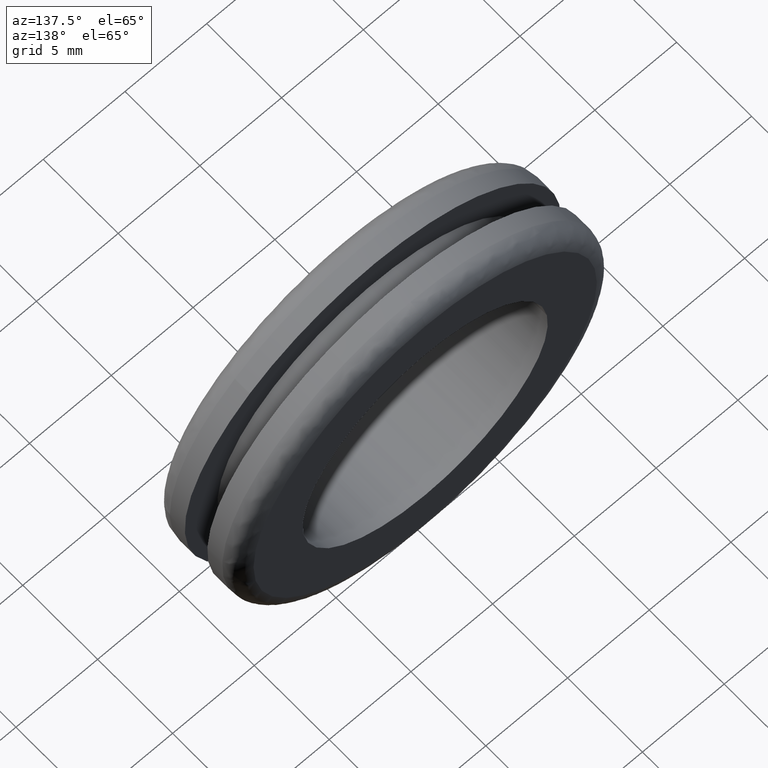
[diagram: clean part render]
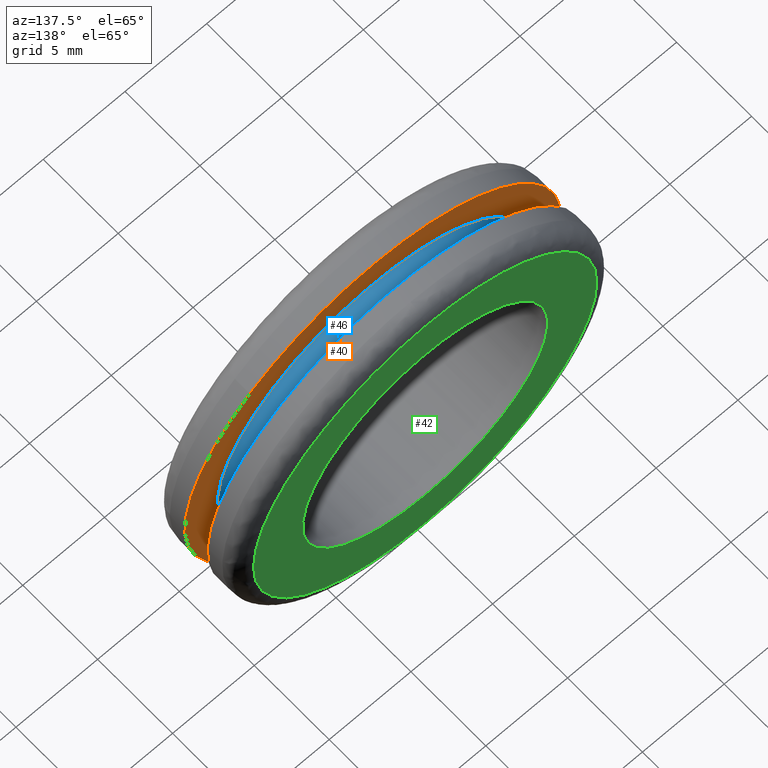
[diagram: same view with three faces highlighted in distinct colors, each labeled with its STEP entity id]
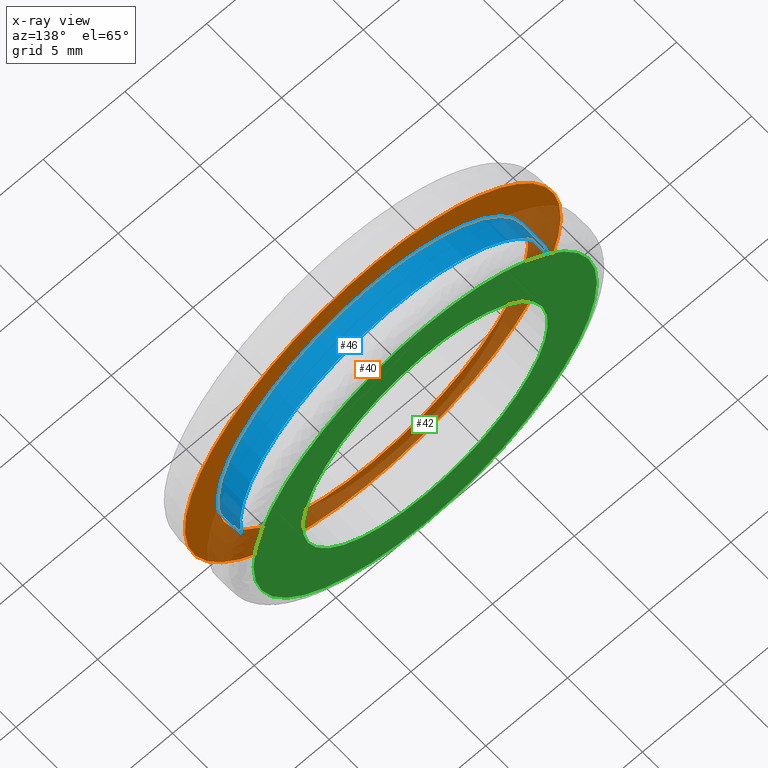
[diagram: x-ray of the same camera — body ghosted, the three highlighted faces saturated]
A machine part, auxiliary view with three faces highlighted in distinct colors.
The next image is the same camera in x-ray (body ghosted, the three faces saturated) — at least one of them is partly hidden behind the body in this view.
Their STEP definitions:

[orange] entity #40 — the highlighted planar face has unit normal (0, -1, 0).
#40=ADVANCED_FACE('',(#57,#58),#56,.F.);
#56=PLANE('',#223);
#57=FACE_OUTER_BOUND('',#224,.T.);
#58=FACE_BOUND('',#225,.T.);
#220=CARTESIAN_POINT('',(-2.62541476943E+001,2.00000000000E+000,2.58247788262E+001));
#221=DIRECTION('',(0.00000000000E+000,-1.00000000000E+000,0.00000000000E+000));
#222=DIRECTION('',(0.00000000000E+000,0.00000000000E+000,-1.00000000000E+000));
#223=AXIS2_PLACEMENT_3D('',#220,#221,#222);
#224=EDGE_LOOP('',(#388,#389,#390));
#225=EDGE_LOOP('',(#391,#392,#393));
#388=ORIENTED_EDGE('',*,*,#486,.F.);
#389=ORIENTED_EDGE('',*,*,#487,.F.);
#390=ORIENTED_EDGE('',*,*,#488,.F.);
#391=ORIENTED_EDGE('',*,*,#489,.T.);
#392=ORIENTED_EDGE('',*,*,#490,.T.);
#393=ORIENTED_EDGE('',*,*,#491,.T.);
#486=EDGE_CURVE('',#535,#536,#537,.T.);
#487=EDGE_CURVE('',#543,#535,#544,.T.);
#488=EDGE_CURVE('',#536,#543,#550,.T.);
#489=EDGE_CURVE('',#556,#557,#558,.T.);
#490=EDGE_CURVE('',#557,#564,#565,.T.);
#491=EDGE_CURVE('',#564,#556,#571,.T.);
#535=VERTEX_POINT('',#866);
#536=VERTEX_POINT('',#867);
#537=CIRCLE('',#871,1.15000006468E+001);
#543=VERTEX_POINT('',#872);
#544=CIRCLE('',#876,1.15000006468E+001);
#550=CIRCLE('',#880,1.15000006468E+001);
#556=VERTEX_POINT('',#881);
#557=VERTEX_POINT('',#882);
#558=CIRCLE('',#886,9.50000000000E+000);
#564=VERTEX_POINT('',#887);
#565=CIRCLE('',#891,9.50000000000E+000);
#571=CIRCLE('',#895,9.50000000000E+000);
#866=CARTESIAN_POINT('',(7.52490690199E+000,2.00000000000E+000,8.69630989958E+000));
#867=CARTESIAN_POINT('',(-7.76928758124E+000,2.00000000000E+000,8.47869049913E+000));
#868=CARTESIAN_POINT('',(2.40992899858E-007,2.00000000000E+000,6.46807672311E-007));
#869=DIRECTION('',(-1.02243053205E-016,-1.00000000000E+000,6.36963756175E-015));
#870=DIRECTION('',(-6.75590207414E-001,4.76526382467E-015,7.37277336995E-001));
#871=AXIS2_PLACEMENT_3D('',#868,#869,#870);
#872=CARTESIAN_POINT('',(-7.52464777687E+000,2.00000000000E+000,-8.69653240285E+000));
#873=CARTESIAN_POINT('',(2.40992899858E-007,2.00000000000E+000,6.46807672311E-007));
#874=DIRECTION('',(-1.02243053205E-016,-1.00000000000E+000,6.36963756175E-015));
#875=DIRECTION('',(-6.75590207414E-001,4.76526382467E-015,7.37277336995E-001));
#876=AXIS2_PLACEMENT_3D('',#873,#874,#875);
#877=CARTESIAN_POINT('',(2.40992899858E-007,2.00000000000E+000,6.46807672311E-007));
#878=DIRECTION('',(-1.02243053205E-016,-1.00000000000E+000,6.36963756175E-015));
#879=DIRECTION('',(-6.75590207414E-001,4.76526382467E-015,7.37277336995E-001));
#880=AXIS2_PLACEMENT_3D('',#877,#878,#879);
#881=CARTESIAN_POINT('',(-1.77635683940E-015,2.00000000000E+000,-9.50000000000E+000));
#882=CARTESIAN_POINT('',(9.43339655492E+000,2.00000000000E+000,-1.12295567035E+000));
#883=CARTESIAN_POINT('',(6.92779167366E-014,2.00000000000E+000,1.51878509769E-013));
#884=DIRECTION('',(2.91923264316E-015,-1.00000000000E+000,1.96087245233E-014));
#885=DIRECTION('',(-7.11930514541E-015,-1.96087245233E-014,-1.00000000000E+000));
#886=AXIS2_PLACEMENT_3D('',#883,#884,#885);
#887=CARTESIAN_POINT('',(-9.43359050867E+000,2.00000000000E+000,1.12132516010E+000));
#888=CARTESIAN_POINT('',(6.92779167366E-014,2.00000000000E+000,1.51878509769E-013));
#889=DIRECTION('',(2.91923264316E-015,-1.00000000000E+000,1.96087245233E-014));
#890=DIRECTION('',(-7.11930514541E-015,-1.96087245233E-014,-1.00000000000E+000));
#891=AXIS2_PLACEMENT_3D('',#888,#889,#890);
#892=CARTESIAN_POINT('',(6.92779167366E-014,2.00000000000E+000,1.51878509769E-013));
#893=DIRECTION('',(2.91923264316E-015,-1.00000000000E+000,1.96087245233E-014));
#894=DIRECTION('',(-7.11930514541E-015,-1.96087245233E-014,-1.00000000000E+000));
#895=AXIS2_PLACEMENT_3D('',#892,#893,#894);

[blue] entity #46 — the highlighted cylindrical surface (partial cylindrical patch) has radius 9.5 mm, axis along (-0, 1, -0).
#46=ADVANCED_FACE('',(#121),#120,.T.);
#120=CYLINDRICAL_SURFACE('',#257,9.50000000000E+000);
#121=FACE_OUTER_BOUND('',#258,.T.);
#254=CARTESIAN_POINT('',(2.49537272976E-016,3.53750000000E+000,-4.37168135886E-016));
#255=DIRECTION('',(-5.75729912391E-017,1.00000000000E+000,-4.84355483203E-016));
#256=DIRECTION('',(-9.93009526364E-001,-2.46519032882E-032,1.18034234657E-001));
#257=AXIS2_PLACEMENT_3D('',#254,#255,#256);
#258=EDGE_LOOP('',(#426,#427,#428,#429));
#426=ORIENTED_EDGE('',*,*,#496,.T.);
#427=ORIENTED_EDGE('',*,*,#519,.F.);
#428=ORIENTED_EDGE('',*,*,#490,.F.);
#429=ORIENTED_EDGE('',*,*,#520,.T.);
#490=EDGE_CURVE('',#557,#564,#565,.T.);
#496=EDGE_CURVE('',#606,#598,#607,.T.);
#519=EDGE_CURVE('',#564,#598,#764,.T.);
#520=EDGE_CURVE('',#557,#606,#770,.T.);
#557=VERTEX_POINT('',#882);
#564=VERTEX_POINT('',#887);
#565=CIRCLE('',#891,9.50000000000E+000);
#598=VERTEX_POINT('',#911);
#606=VERTEX_POINT('',#917);
#607=CIRCLE('',#921,9.50000000000E+000);
#764=(BOUNDED_CURVE() B_SPLINE_CURVE(1,(#1025,#1026),.UNSPECIFIED.,.F.,.F.) B_SPLINE_CURVE_WITH_KNOTS((2,2),(8.33333134656E-002,9.16666653270E-001),.UNSPECIFIED.) CURVE() GEOMETRIC_REPRESENTATION_ITEM() RATIONAL_B_SPLINE_CURVE((1.00000000000E+000,1.00000000000E+000)) REPRESENTATION_ITEM('') );
#770=(BOUNDED_CURVE() B_SPLINE_CURVE(1,(#1027,#1028),.UNSPECIFIED.,.F.,.F.) B_SPLINE_CURVE_WITH_KNOTS((2,2),(8.33333333334E-002,9.16666666667E-001),.UNSPECIFIED.) CURVE() GEOMETRIC_REPRESENTATION_ITEM() RATIONAL_B_SPLINE_CURVE((7.50000000000E-001,7.50000000000E-001)) REPRESENTATION_ITEM('') );
#882=CARTESIAN_POINT('',(9.43339655492E+000,2.00000000000E+000,-1.12295567035E+000));
#887=CARTESIAN_POINT('',(-9.43359050867E+000,2.00000000000E+000,1.12132516010E+000));
#888=CARTESIAN_POINT('',(6.92779167366E-014,2.00000000000E+000,1.51878509769E-013));
#889=DIRECTION('',(2.91923264316E-015,-1.00000000000E+000,1.96087245233E-014));
#890=DIRECTION('',(-7.11930514541E-015,-1.96087245233E-014,-1.00000000000E+000));
#891=AXIS2_PLACEMENT_3D('',#888,#889,#890);
#911=CARTESIAN_POINT('',(-9.43359050867E+000,3.50000000000E+000,1.12132516010E+000));
#917=CARTESIAN_POINT('',(9.43339655492E+000,3.50000000000E+000,-1.12295567035E+000));
#918=CARTESIAN_POINT('',(7.01660951563E-014,3.50000000000E+000,1.50102152929E-013));
#919=DIRECTION('',(-1.36554849265E-017,-1.00000000000E+000,-1.14882290180E-016));
#920=DIRECTION('',(-7.23032744787E-015,1.14882290180E-016,-1.00000000000E+000));
#921=AXIS2_PLACEMENT_3D('',#918,#919,#920);
#1025=CARTESIAN_POINT('',(-9.43359050045E+000,1.99999996424E+000,1.12132522924E+000));
#1026=CARTESIAN_POINT('',(-9.43359050045E+000,3.49999997589E+000,1.12132522924E+000));
#1027=CARTESIAN_POINT('',(9.43359050045E+000,2.00000000000E+000,-1.12132522924E+000));
#1028=CARTESIAN_POINT('',(9.43359050045E+000,3.50000000000E+000,-1.12132522924E+000));

[green] entity #42 — the highlighted planar face has unit normal (0, -1, 0).
#42=ADVANCED_FACE('',(#79,#80),#78,.F.);
#78=PLANE('',#235);
#79=FACE_OUTER_BOUND('',#236,.T.);
#80=FACE_BOUND('',#237,.T.);
#232=CARTESIAN_POINT('',(-1.36500000129E+001,5.50000000000E+000,2.18238401837E+001));
#233=DIRECTION('',(0.00000000000E+000,-1.00000000000E+000,0.00000000000E+000));
#234=DIRECTION('',(0.00000000000E+000,0.00000000000E+000,-1.00000000000E+000));
#235=AXIS2_PLACEMENT_3D('',#232,#233,#234);
#236=EDGE_LOOP('',(#400,#401,#402));
#237=EDGE_LOOP('',(#403,#404,#405));
#400=ORIENTED_EDGE('',*,*,#498,.F.);
#401=ORIENTED_EDGE('',*,*,#499,.F.);
#402=ORIENTED_EDGE('',*,*,#500,.F.);
#403=ORIENTED_EDGE('',*,*,#501,.T.);
#404=ORIENTED_EDGE('',*,*,#502,.T.);
#405=ORIENTED_EDGE('',*,*,#503,.T.);
#498=EDGE_CURVE('',#619,#620,#621,.T.);
#499=EDGE_CURVE('',#627,#619,#628,.T.);
#500=EDGE_CURVE('',#620,#627,#634,.T.);
#501=EDGE_CURVE('',#640,#641,#642,.T.);
#502=EDGE_CURVE('',#641,#648,#649,.T.);
#503=EDGE_CURVE('',#648,#640,#655,.T.);
#619=VERTEX_POINT('',#926);
#620=VERTEX_POINT('',#927);
#621=CIRCLE('',#931,1.05000000040E+001);
#627=VERTEX_POINT('',#932);
#628=CIRCLE('',#936,1.05000000040E+001);
#634=CIRCLE('',#940,1.05000000040E+001);
#640=VERTEX_POINT('',#941);
#641=VERTEX_POINT('',#942);
#642=CIRCLE('',#946,7.50000000000E+000);
#648=VERTEX_POINT('',#947);
#649=CIRCLE('',#951,7.50000000000E+000);
#655=CIRCLE('',#955,7.50000000000E+000);
#926=CARTESIAN_POINT('',(-4.21246554746E-014,5.50000000000E+000,1.05000000080E+001));
#927=CARTESIAN_POINT('',(-1.05000000040E+001,5.50000000000E+000,7.54951656745E-015));
#928=CARTESIAN_POINT('',(1.01376684825E-011,5.50000000000E+000,4.01495015012E-009));
#929=DIRECTION('',(-5.84986668677E-016,-1.00000000000E+000,-2.31082551290E-015));
#930=DIRECTION('',(-1.00000000000E+000,5.84986669561E-016,-3.82376796892E-010));
#931=AXIS2_PLACEMENT_3D('',#928,#929,#930);
#932=CARTESIAN_POINT('',(1.08969927717E-003,5.50000000000E+000,-1.04999999435E+001));
#933=CARTESIAN_POINT('',(1.01376684825E-011,5.50000000000E+000,4.01495015012E-009));
#934=DIRECTION('',(-5.84986668677E-016,-1.00000000000E+000,-2.31082551290E-015));
#935=DIRECTION('',(-1.00000000000E+000,5.84986669561E-016,-3.82376796892E-010));
#936=AXIS2_PLACEMENT_3D('',#933,#934,#935);
#937=CARTESIAN_POINT('',(1.01376684825E-011,5.50000000000E+000,4.01495015012E-009));
#938=DIRECTION('',(-5.84986668677E-016,-1.00000000000E+000,-2.31082551290E-015));
#939=DIRECTION('',(-1.00000000000E+000,5.84986669561E-016,-3.82376796892E-010));
#940=AXIS2_PLACEMENT_3D('',#937,#938,#939);
#941=CARTESIAN_POINT('',(6.66133814775E-016,5.50000000000E+000,-7.50000000000E+000));
#942=CARTESIAN_POINT('',(7.44741833179E+000,5.50000000000E+000,-8.86543959015E-001));
#943=CARTESIAN_POINT('',(1.74527059471E-013,5.50000000000E+000,3.82804898891E-013));
#944=DIRECTION('',(-1.43115110846E-015,-1.00000000000E+000,-1.00335444639E-014));
#945=DIRECTION('',(-2.28150831560E-014,1.00335444639E-014,-1.00000000000E+000));
#946=AXIS2_PLACEMENT_3D('',#943,#944,#945);
#947=CARTESIAN_POINT('',(-7.44757177146E+000,5.50000000000E+000,8.85254036392E-001));
#948=CARTESIAN_POINT('',(1.74527059471E-013,5.50000000000E+000,3.82804898891E-013));
#949=DIRECTION('',(-1.43115110846E-015,-1.00000000000E+000,-1.00335444639E-014));
#950=DIRECTION('',(-2.28150831560E-014,1.00335444639E-014,-1.00000000000E+000));
#951=AXIS2_PLACEMENT_3D('',#948,#949,#950);
#952=CARTESIAN_POINT('',(1.74527059471E-013,5.50000000000E+000,3.82804898891E-013));
#953=DIRECTION('',(-1.43115110846E-015,-1.00000000000E+000,-1.00335444639E-014));
#954=DIRECTION('',(-2.28150831560E-014,1.00335444639E-014,-1.00000000000E+000));
#955=AXIS2_PLACEMENT_3D('',#952,#953,#954);